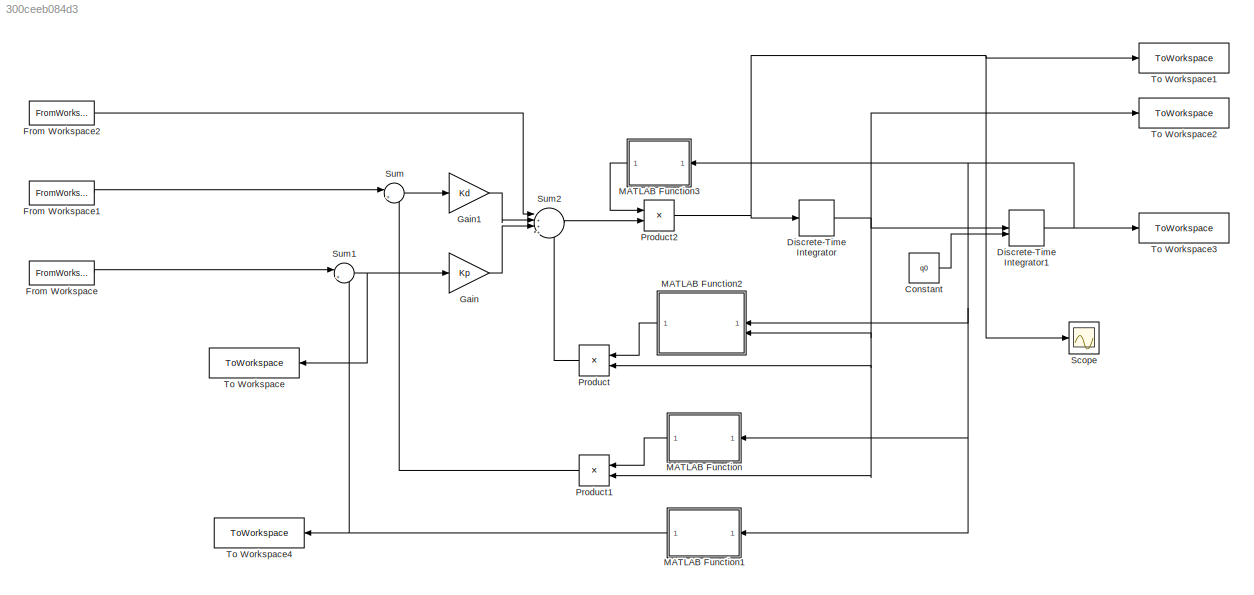
MODEL slx_300ceeb084d3
KIND model
CONFIG AbsTol = auto
CONFIG EnableMultiTasking = off
CONFIG FixedStep = auto
CONFIG MaxStep = auto
CONFIG MinStep = auto
CONFIG RelTol = 1e-3
CONFIG SampleTimeConstraint = Unconstrained
CONFIG SolverName = VariableStepAuto
CONFIG StartTime = 0.0
CONFIG StopTime = 50
BLOCK [Constant] Constant
  Value = q0
BLOCK [DiscreteIntegrator] Discrete-Time Integrator
  ICPrevOutput = DiscIntNeverNeededParam
  ICPrevScaledInput = DiscIntNeverNeededParam
  InitialConditionSetting = Auto
  SampleTime = Tc
BLOCK [DiscreteIntegrator] Discrete-Time Integrator1
  ICPrevOutput = DiscIntNeverNeededParam
  ICPrevScaledInput = DiscIntNeverNeededParam
  InitialConditionSetting = Auto
  InitialConditionSource = external
  SampleTime = Tc
BLOCK [FromWorkspace] From Workspace
  VariableName = xd
BLOCK [FromWorkspace] From Workspace1
  VariableName = xddot
BLOCK [FromWorkspace] From Workspace2
  VariableName = xddotdot
BLOCK [Gain] Gain
  Gain = Kp
  Multiplication = Matrix(K*u) (u vector)
BLOCK [Gain] Gain1
  Gain = Kd
  Multiplication = Matrix(K*u) (u vector)
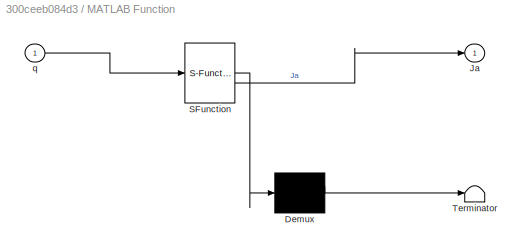
BLOCK [SubSystem] MATLAB Function
  ErrorFcn = Stateflow.Translate.translate
  NameLocation = top
  PermitHierarchicalResolution = ExplicitOnly
  SFBlockType = MATLAB Function
  TreatAsAtomicUnit = on
BLOCK [Demux] MATLAB Function/ Demux 
  Outputs = 1
BLOCK [S-Function] MATLAB Function/ SFunction 
  EnableBusSupport = on
  FunctionName = sf_sfun
  PortCounts = [1 2]
  SFcnIsStateOwnerBlock = off
  SFunctionDeploymentMode = off
  Tag = Stateflow S-Function 2
BLOCK [Terminator] MATLAB Function/ Terminator 
BLOCK [Outport] MATLAB Function/Ja
BLOCK [Inport] MATLAB Function/q
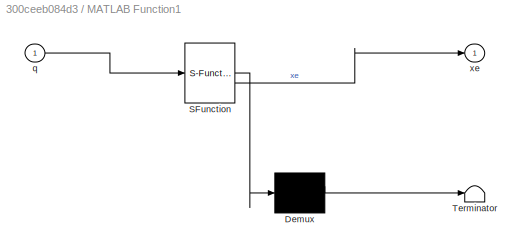
BLOCK [SubSystem] MATLAB Function1
  ErrorFcn = Stateflow.Translate.translate
  NameLocation = top
  PermitHierarchicalResolution = ExplicitOnly
  SFBlockType = MATLAB Function
  TreatAsAtomicUnit = on
BLOCK [Demux] MATLAB Function1/ Demux 
  Outputs = 1
BLOCK [S-Function] MATLAB Function1/ SFunction 
  EnableBusSupport = on
  FunctionName = sf_sfun
  PortCounts = [1 2]
  SFcnIsStateOwnerBlock = off
  SFunctionDeploymentMode = off
  Tag = Stateflow S-Function 1
BLOCK [Terminator] MATLAB Function1/ Terminator 
BLOCK [Inport] MATLAB Function1/q
BLOCK [Outport] MATLAB Function1/xe
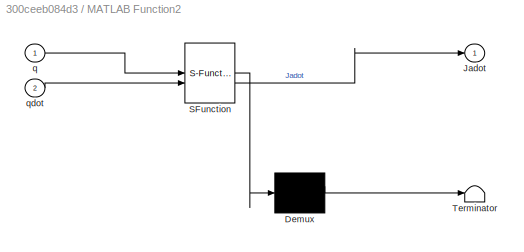
BLOCK [SubSystem] MATLAB Function2
  ErrorFcn = Stateflow.Translate.translate
  NameLocation = top
  PermitHierarchicalResolution = ExplicitOnly
  SFBlockType = MATLAB Function
  TreatAsAtomicUnit = on
BLOCK [Demux] MATLAB Function2/ Demux 
  Outputs = 1
BLOCK [S-Function] MATLAB Function2/ SFunction 
  EnableBusSupport = on
  FunctionName = sf_sfun
  PortCounts = [2 2]
  SFcnIsStateOwnerBlock = off
  SFunctionDeploymentMode = off
  Tag = Stateflow S-Function 3
BLOCK [Terminator] MATLAB Function2/ Terminator 
BLOCK [Outport] MATLAB Function2/Jadot
BLOCK [Inport] MATLAB Function2/q
BLOCK [Inport] MATLAB Function2/qdot
  Port = 2
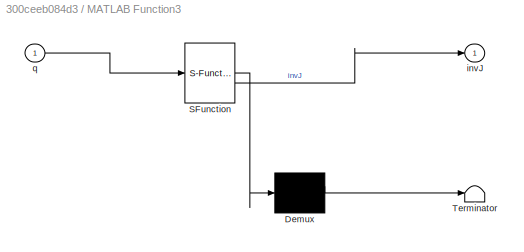
BLOCK [SubSystem] MATLAB Function3
  ErrorFcn = Stateflow.Translate.translate
  NameLocation = top
  PermitHierarchicalResolution = ExplicitOnly
  SFBlockType = MATLAB Function
  TreatAsAtomicUnit = on
BLOCK [Demux] MATLAB Function3/ Demux 
  Outputs = 1
BLOCK [S-Function] MATLAB Function3/ SFunction 
  EnableBusSupport = on
  FunctionName = sf_sfun
  PortCounts = [1 2]
  SFcnIsStateOwnerBlock = off
  SFunctionDeploymentMode = off
  Tag = Stateflow S-Function 4
BLOCK [Terminator] MATLAB Function3/ Terminator 
BLOCK [Outport] MATLAB Function3/invJ
BLOCK [Inport] MATLAB Function3/q
BLOCK [Product] Product
  Multiplication = Matrix(*)
  NameLocation = top
BLOCK [Product] Product1
  Multiplication = Matrix(*)
  NameLocation = top
BLOCK [Product] Product2
  Multiplication = Matrix(*)
BLOCK [Scope] Scope
  Floating = off
  NumInputPorts = 1
  ScopeSpecificationString = Simulink.scopes.TimeScopeBlockCfg('CurrentConfiguration', extmgr.ConfigurationSet(extmgr.Configuration('Core','General UI',true),extmgr.Configuration('Core','Source UI',true),extmgr.Configuration('Sources','WiredSimulink',true),extmgr.Configuration('Visuals','Time Domain',true,'SerializedDisplays',{struct('MinYLimReal','-42939216.44136','MaxYLimReal','74167732.95428','YLabelReal','','MinYLimMag','...<+1463ch>
BLOCK [Sum] Sum
  Inputs = |+-
BLOCK [Sum] Sum1
  Inputs = |+-
BLOCK [Sum] Sum2
  Inputs = |+++-
BLOCK [ToWorkspace] To Workspace
  FixptAsFi = on
  MaxDataPoints = inf
  SampleTime = -1
  SaveFormat = Structure With Time
  VariableName = e_sec
BLOCK [ToWorkspace] To Workspace1
  FixptAsFi = on
  MaxDataPoints = inf
  SampleTime = -1
  SaveFormat = Structure With Time
  VariableName = qdotdot_sec
BLOCK [ToWorkspace] To Workspace2
  FixptAsFi = on
  MaxDataPoints = inf
  SampleTime = -1
  SaveFormat = Structure With Time
  VariableName = qdot_sec
BLOCK [ToWorkspace] To Workspace3
  FixptAsFi = on
  MaxDataPoints = inf
  SampleTime = -1
  SaveFormat = Structure With Time
  VariableName = q_sec
BLOCK [ToWorkspace] To Workspace4
  FixptAsFi = on
  MaxDataPoints = inf
  NameLocation = top
  SampleTime = -1
  SaveFormat = Structure With Time
  VariableName = xe_sec
LINE Constant:1 -> Discrete-Time Integrator1:2
NET Discrete-Time Integrator1:1 -> MATLAB Function1:1, MATLAB Function2:1, MATLAB Function3:1, MATLAB Function:1, To Workspace3:1
NET Discrete-Time Integrator:1 -> Discrete-Time Integrator1:1, MATLAB Function2:2, Product1:2, Product:2, To Workspace2:1
LINE From Workspace1:1 -> Sum:1
LINE From Workspace2:1 -> Sum2:1
LINE From Workspace:1 -> Sum1:1
LINE Gain1:1 -> Sum2:2
LINE Gain:1 -> Sum2:3
NET MATLAB Function1:1 -> Sum1:2, To Workspace4:1
LINE MATLAB Function2:1 -> Product:1
LINE MATLAB Function3:1 -> Product2:1
LINE MATLAB Function:1 -> Product1:1
LINE Product1:1 -> Sum:2
NET Product2:1 -> Discrete-Time Integrator:1, Scope:1, To Workspace1:1
LINE Product:1 -> Sum2:4
NET Sum1:1 -> Gain:1, To Workspace:1
LINE Sum2:1 -> Product2:2
LINE Sum:1 -> Gain1:1
note: NET lines group one-source signal fan-out (src -> all destinations, sorted); 1:1 wires keep LINE
CHART MATLAB Function states=1 transitions=1
  STATE_LABEL 'eML_blk_kernel()'
  STATE_LABEL 'SCRIPT:\nfunction Ja = jacob(q)\n\na1=0.5;\na2=a1;\nd0=1;\n\nJa = [-a1*sin(q(1))-a2*sin(q(1)+q(2)),-a2*sin(q(1)+q(2)),0,0;\n       a1*cos(q(1))+a2*cos(q(1)+q(2)),a2*cos(q(1)+q(2)),0,0;\n       0,0,1,0;\n       1,1,0,1];\n\nend\n'
CHART MATLAB Function2 states=1 transitions=1
  STATE_LABEL 'eML_blk_kernel()'
  STATE_LABEL 'SCRIPT:\nfunction Jadot = jacobdot(q,qdot)\n\na1=0.5;\na2=a1;\n\nJadot = [qdot(1)*(-a1*cos(q(1)))-(qdot(1)+qdot(2))*a2*cos(q(1)+q(2)),(qdot(1)+qdot(2))*(-a2*cos(q(1)+q(2))),0,0;\n         qdot(1)*(-a1*sin(q(1)))-(qdot(1)+qdot(2))*a2*sin(q(1)+q(2)),(qdot(1)+qdot(2))*(-a2*sin(q(1)+q(2))),0,0;\n         0,0,0,0;\n         0,0,0,0];\nend\n'
CHART MATLAB Function3 states=1 transitions=1
  STATE_LABEL 'eML_blk_kernel()'
  STATE_LABEL 'SCRIPT:\nfunction invJ=inversione(q)\na1=0.5;\na2=a1;\n\nJ=[-a1*sin(q(1))-a2*sin(q(1)+q(2)),-a2*sin(q(1)+q(2)),0,0;...\n    a1*cos(q(1))+a2*cos(q(1)+q(2)),a2*cos(q(1)+q(2)),0,0;...\n    0,0,1,0;...\n    1,1,0,1];\ninvJ=J^-1;\nend\n\n\n'
CHART MATLAB Function1 states=1 transitions=1
  STATE_LABEL 'eML_blk_kernel()'
  STATE_LABEL 'SCRIPT:\nfunction xe = dirkin(q)\na1=0.5;\na2=a1;\nd0=1;\n\n\nxe=[a1*cos(q(1))+a2*cos(q(1)+q(2));...\n    a1*sin(q(1))+a2*sin(q(1)+q(2));...\n    d0+q(3);...\n    q(1)+q(2)+q(4)];\nend\n'
CHART  states=0 transitions=0
CHART  states=0 transitions=0
CHART  states=0 transitions=0
CHART  states=0 transitions=0
